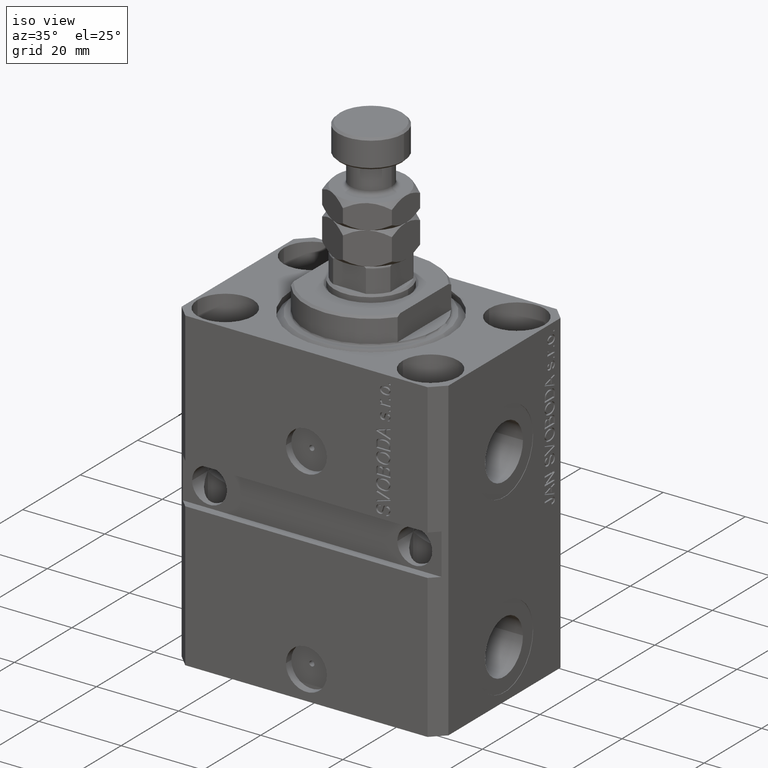
[diagram: clean part render]
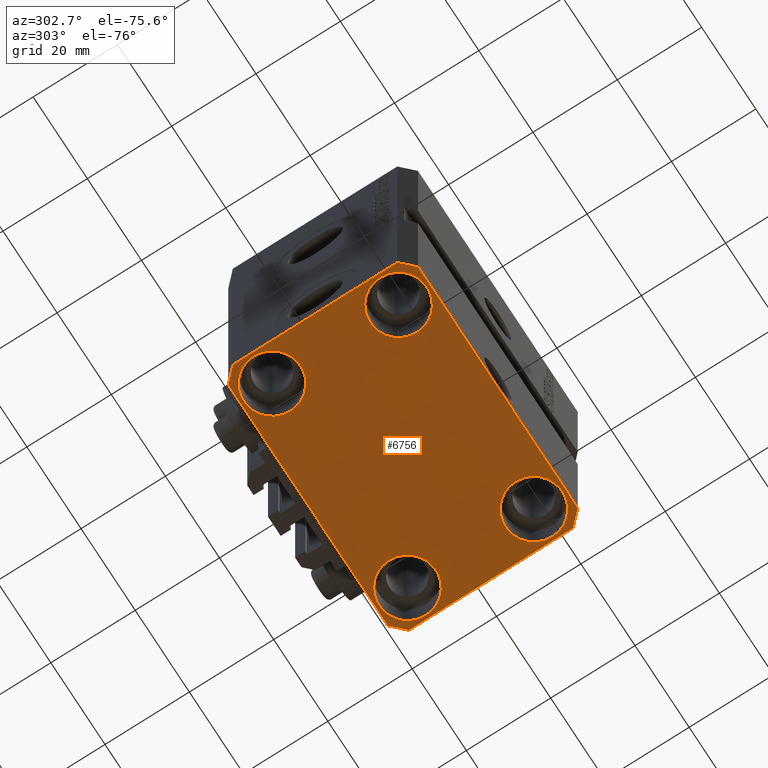
[diagram: tour spotlight — one face highlighted and labeled with its STEP entity id]
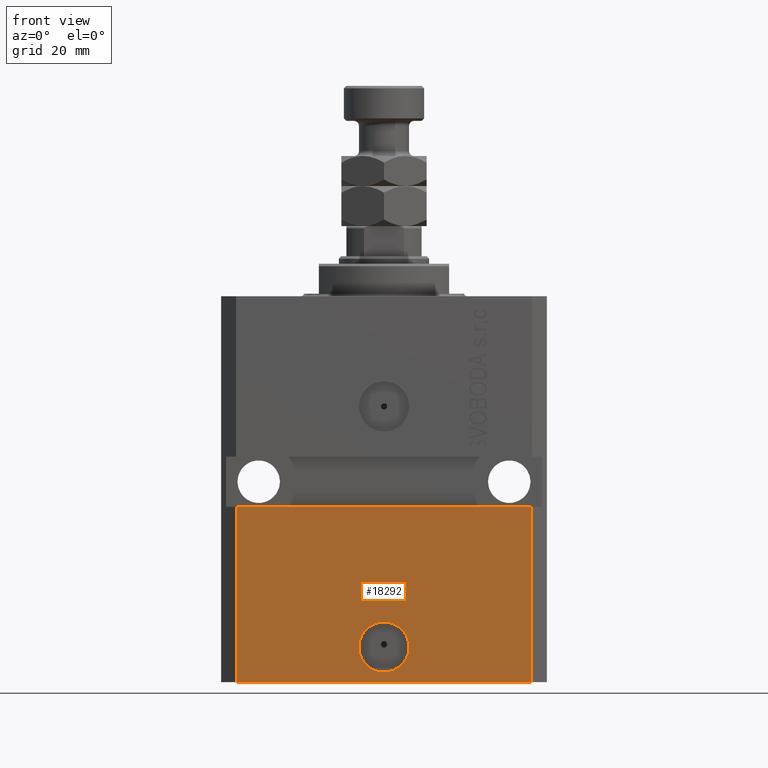
[diagram: tour spotlight — one face highlighted and labeled with its STEP entity id]
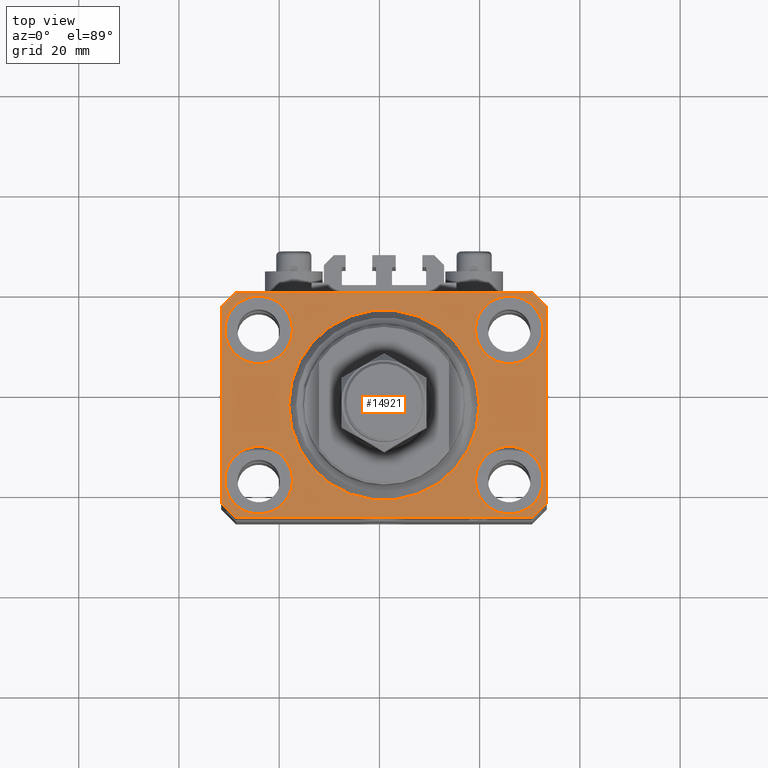
[diagram: tour spotlight — one face highlighted and labeled with its STEP entity id]
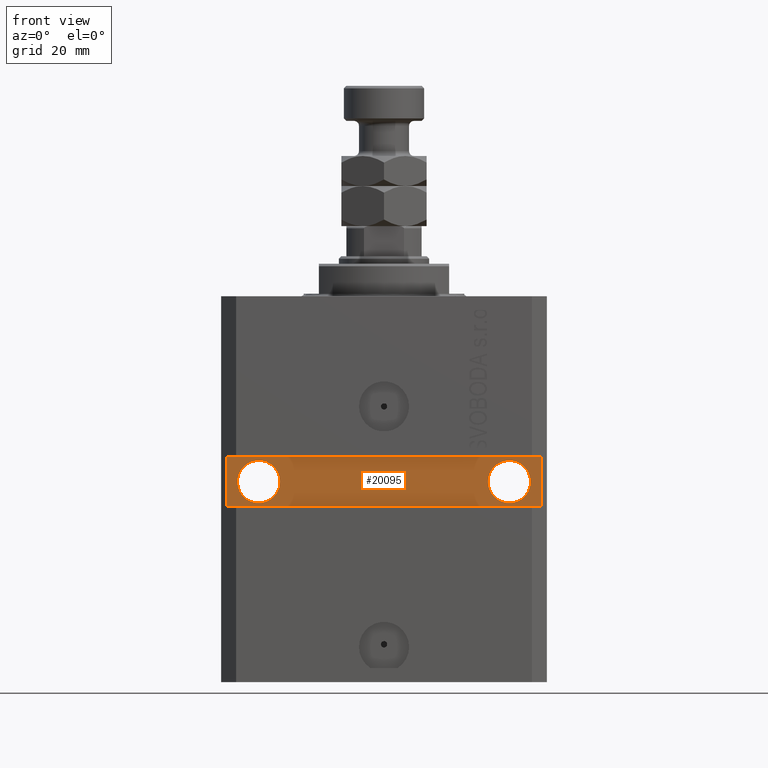
[diagram: tour spotlight — one face highlighted and labeled with its STEP entity id]
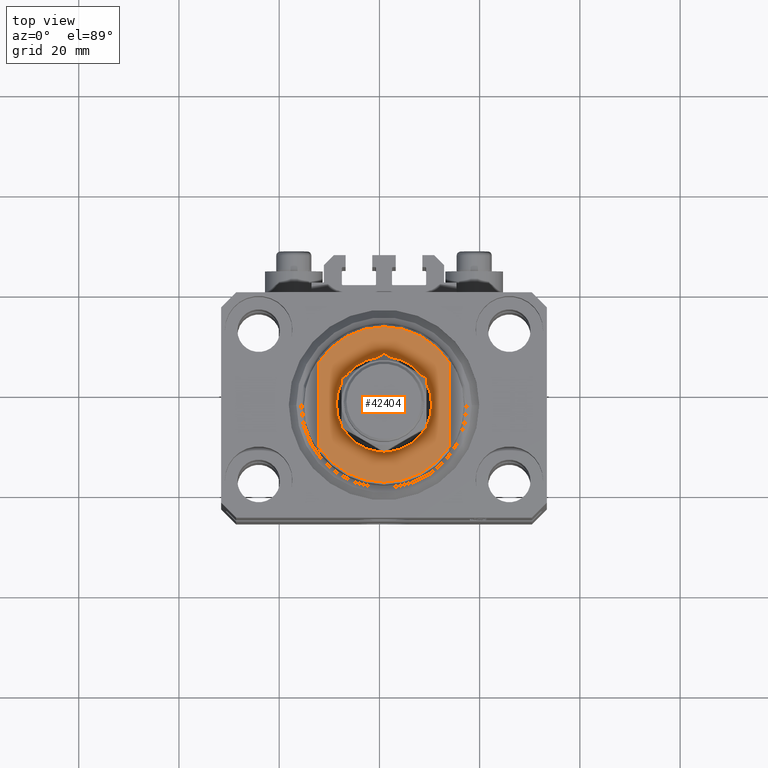
[diagram: tour spotlight — one face highlighted and labeled with its STEP entity id]
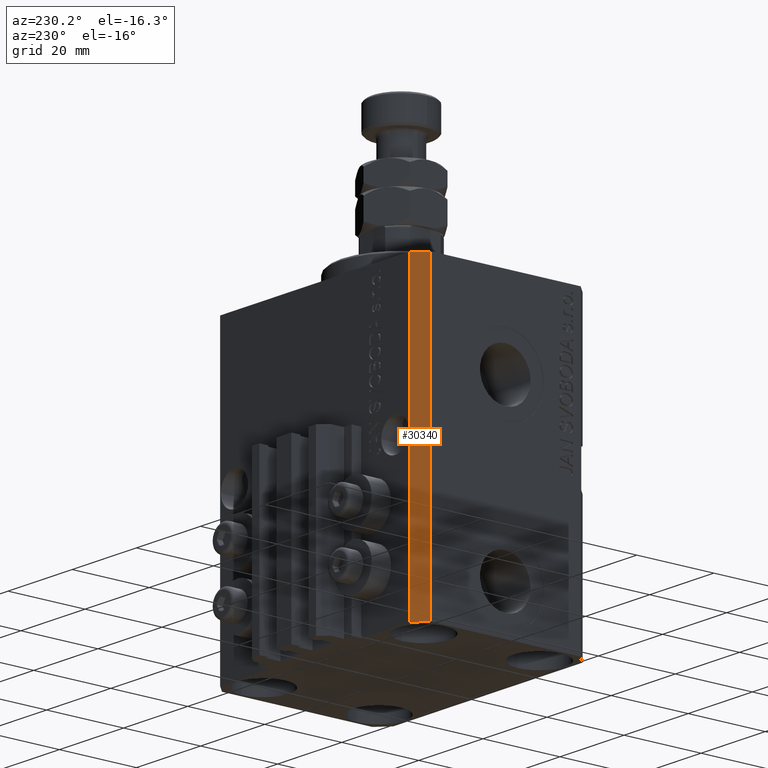
[diagram: tour spotlight — one face highlighted and labeled with its STEP entity id]
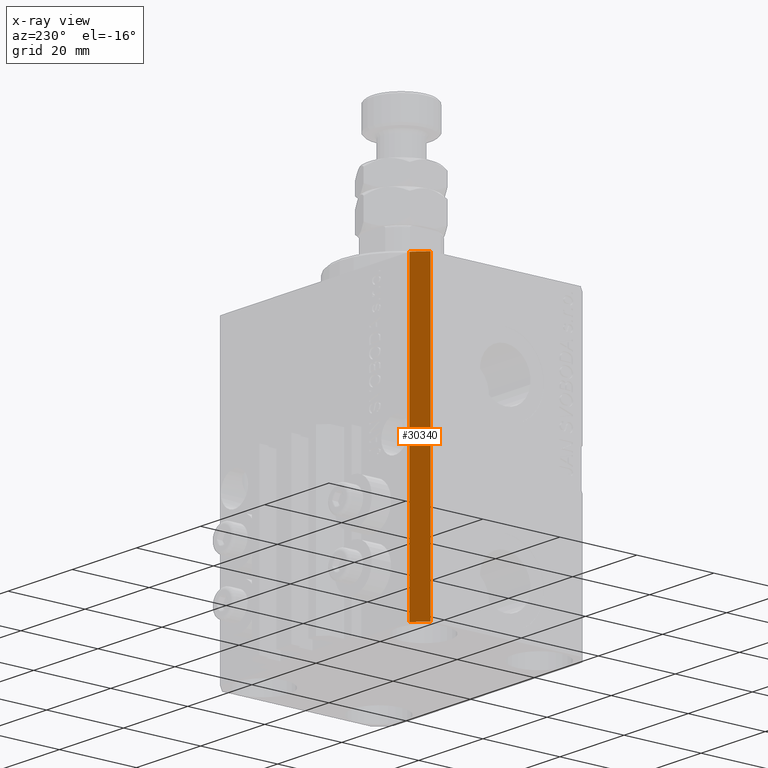
[diagram: x-ray of the same camera — body ghosted, this tour face saturated]
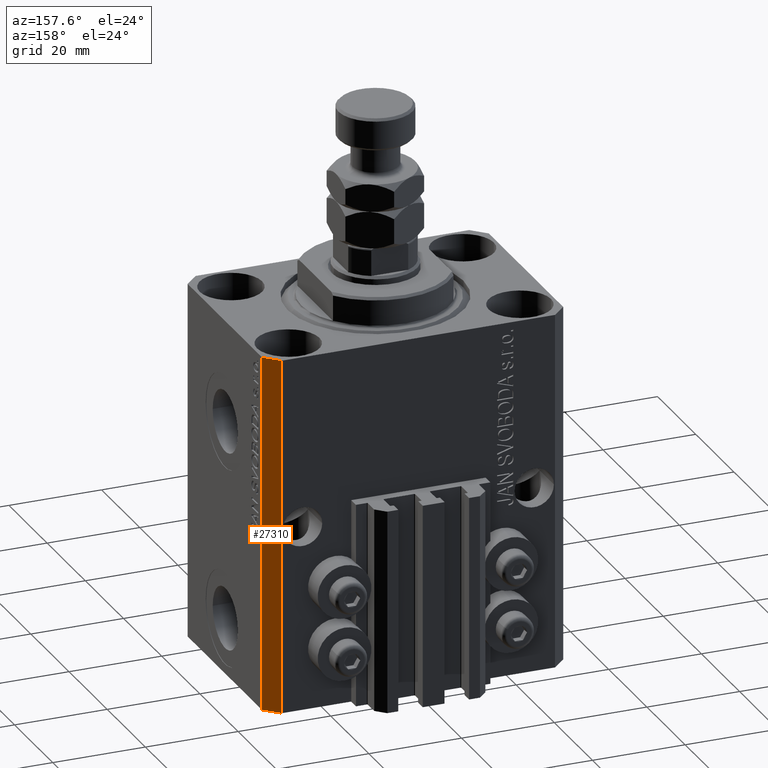
[diagram: tour spotlight — one face highlighted and labeled with its STEP entity id]
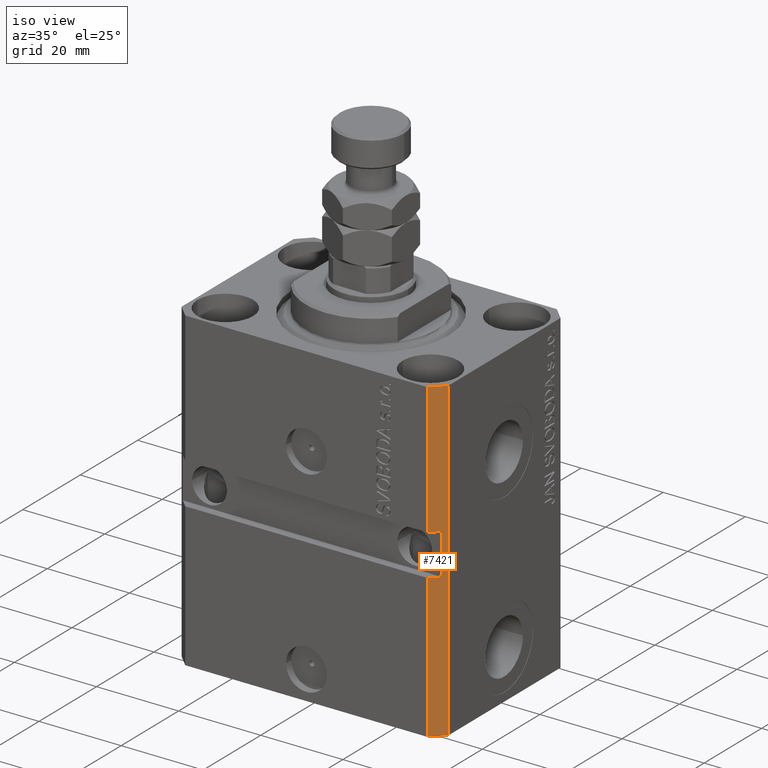
[diagram: tour spotlight — one face highlighted and labeled with its STEP entity id]
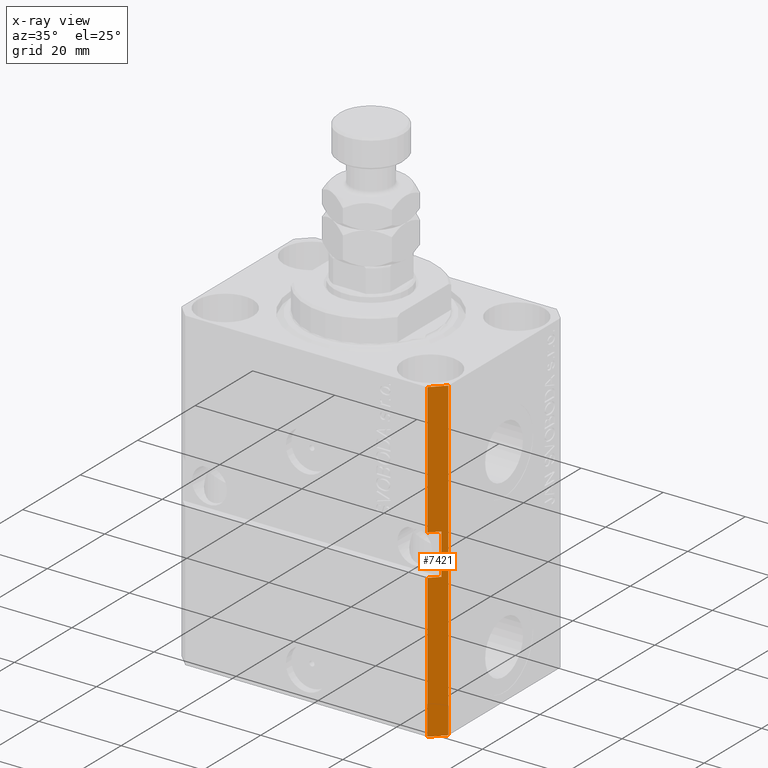
[diagram: x-ray of the same camera — body ghosted, this tour face saturated]
A machine part: a face-by-face anatomy tour. The part has 1135 B-rep faces; the first image is the clean iso view, then the 8 largest visible faces are spotlighted one at a time (largest first), each with its STEP entity span.

Face 1 — auxiliary view, entity #6756. In plain terms, the highlighted planar face has unit normal (0, 0, 1).
Definition (entity closure, byte-faithful):
#782 = VERTEX_POINT ( 'NONE', #4209 ) ;
#1633 = VERTEX_POINT ( 'NONE', #1945 ) ;
#1660 = DIRECTION ( 'NONE',  ( -0.000000000000000000, -0.000000000000000000, 1.000000000000000000 ) ) ;
#1945 = CARTESIAN_POINT ( 'NONE',  ( 18.25000000004154543, 15.00000000000000888, -77.00000000000000000 ) ) ;
#2403 = VERTEX_POINT ( 'NONE', #12836 ) ;
#2987 = VERTEX_POINT ( 'NONE', #44020 ) ;
#3161 = EDGE_CURVE ( 'NONE', #25641, #782, #31664, .T. ) ;
#3169 = CIRCLE ( 'NONE', #15958, 6.749999999977465137 ) ;
#3378 = AXIS2_PLACEMENT_3D ( 'NONE', #24434, #20932, #36410 ) ;
#3767 = ORIENTED_EDGE ( 'NONE', *, *, #18434, .F. ) ;
#4209 = CARTESIAN_POINT ( 'NONE',  ( -18.24999999995845812, -15.00000000000000000, -77.00000000000000000 ) ) ;
#4377 = DIRECTION ( 'NONE',  ( 0.000000000000000000, 0.000000000000000000, 1.000000000000000000 ) ) ;
#5213 = DIRECTION ( 'NONE',  ( 1.334402673828349134E-14, 1.000000000000000000, 0.000000000000000000 ) ) ;
#5358 = CARTESIAN_POINT ( 'NONE',  ( -32.49999999999650413, -19.49999999999949907, -77.00000000000000000 ) ) ;
#5516 = CARTESIAN_POINT ( 'NONE',  ( 31.74999999997746869, -15.00000000000000000, -77.00000000000000000 ) ) ;
#5694 = LINE ( 'NONE', #20938, #22789 ) ;
#5909 = ORIENTED_EDGE ( 'NONE', *, *, #33013, .T. ) ;
#6388 = FACE_BOUND ( 'NONE', #19199, .T. ) ;
#6655 = CARTESIAN_POINT ( 'NONE',  ( -32.49999999999650413, 19.49999999999949907, -77.00000000000000000 ) ) ;
#6756 = ADVANCED_FACE ( 'NONE', ( #6388, #48318, #14136, #29366, #44591 ), #31106, .F. ) ;
#7419 = DIRECTION ( 'NONE',  ( -0.000000000000000000, -0.000000000000000000, 1.000000000000000000 ) ) ;
#7636 = LINE ( 'NONE', #34867, #47443 ) ;
#8428 = DIRECTION ( 'NONE',  ( 1.000000000000000000, 0.000000000000000000, 0.000000000000000000 ) ) ;
#8584 = CARTESIAN_POINT ( 'NONE',  ( -18.24999999997747224, 15.00000000000000000, -77.00000000000000000 ) ) ;
#9101 = DIRECTION ( 'NONE',  ( 0.7071067811865474617, -0.7071067811865474617, 0.000000000000000000 ) ) ;
#9211 = DIRECTION ( 'NONE',  ( 1.000000000000000000, 0.000000000000000000, 0.000000000000000000 ) ) ;
#9258 = CARTESIAN_POINT ( 'NONE',  ( -25.00000000000000355, 15.00000000000000000, -77.00000000000000000 ) ) ;
#9450 = DIRECTION ( 'NONE',  ( -0.000000000000000000, -0.000000000000000000, 1.000000000000000000 ) ) ;
#9781 = VERTEX_POINT ( 'NONE', #5516 ) ;
#9819 = EDGE_CURVE ( 'NONE', #2987, #10154, #21064, .T. ) ;
#10154 = VERTEX_POINT ( 'NONE', #8584 ) ;
#10739 = EDGE_CURVE ( 'NONE', #17704, #37982, #45166, .T. ) ;
#10845 = VECTOR ( 'NONE', #14588, 1000.000000000000000 ) ;
#11022 = AXIS2_PLACEMENT_3D ( 'NONE', #18641, #29393, #22151 ) ;
#11165 = VECTOR ( 'NONE', #9101, 1000.000000000000114 ) ;
#12282 = AXIS2_PLACEMENT_3D ( 'NONE', #32674, #9450, #9211 ) ;
#12644 = CIRCLE ( 'NONE', #11022, 6.750000000041541881 ) ;
#12804 = CARTESIAN_POINT ( 'NONE',  ( 18.25000000002253842, -15.00000000000000000, -77.00000000000000000 ) ) ;
#12836 = CARTESIAN_POINT ( 'NONE',  ( -32.49999999999650413, 19.49999999999949907, -77.00000000000000000 ) ) ;
#12911 = DIRECTION ( 'NONE',  ( 1.000000000000000000, 0.000000000000000000, 0.000000000000000000 ) ) ;
#13705 = AXIS2_PLACEMENT_3D ( 'NONE', #16673, #20670, #8428 ) ;
#13842 = VERTEX_POINT ( 'NONE', #49214 ) ;
#13908 = AXIS2_PLACEMENT_3D ( 'NONE', #41644, #7419, #22672 ) ;
#14136 = FACE_BOUND ( 'NONE', #26666, .T. ) ;
#14472 = LINE ( 'NONE', #19211, #34147 ) ;
#14588 = DIRECTION ( 'NONE',  ( -1.000000000000000000, -2.352167425053553784E-16, 0.000000000000000000 ) ) ;
#15116 = CARTESIAN_POINT ( 'NONE',  ( 29.49999999999707967, 22.49999999999951328, -77.00000000000000000 ) ) ;
#15560 = CARTESIAN_POINT ( 'NONE',  ( -31.75000000004154899, -15.00000000000000000, -77.00000000000000000 ) ) ;
#15889 = ORIENTED_EDGE ( 'NONE', *, *, #34435, .F. ) ;
#15958 = AXIS2_PLACEMENT_3D ( 'NONE', #20162, #19920, #38386 ) ;
#16101 = EDGE_CURVE ( 'NONE', #2403, #17832, #40874, .T. ) ;
#16135 = EDGE_CURVE ( 'NONE', #31631, #17704, #7636, .T. ) ;
#16673 = CARTESIAN_POINT ( 'NONE',  ( 24.99999999999999645, 15.00000000000000888, -77.00000000000000000 ) ) ;
#16743 = ORIENTED_EDGE ( 'NONE', *, *, #9819, .T. ) ;
#17240 = DIRECTION ( 'NONE',  ( 1.000000000000000000, 0.000000000000000000, 0.000000000000000000 ) ) ;
#17704 = VERTEX_POINT ( 'NONE', #29207 ) ;
#17832 = VERTEX_POINT ( 'NONE', #31936 ) ;
#17892 = EDGE_CURVE ( 'NONE', #37982, #37286, #5694, .T. ) ;
#18208 = EDGE_LOOP ( 'NONE', ( #3767, #46502, #37080, #43426, #22806, #15889, #30543, #27239 ) ) ;
#18232 = DIRECTION ( 'NONE',  ( 0.7071067811865483499, 0.7071067811865466846, 0.000000000000000000 ) ) ;
#18434 = EDGE_CURVE ( 'NONE', #35285, #13842, #26819, .T. ) ;
#18514 = CIRCLE ( 'NONE', #13705, 6.749999999958452790 ) ;
#18641 = CARTESIAN_POINT ( 'NONE',  ( -25.00000000000000355, -15.00000000000000000, -77.00000000000000000 ) ) ;
#19199 = EDGE_LOOP ( 'NONE', ( #24613, #43872 ) ) ;
#19211 = CARTESIAN_POINT ( 'NONE',  ( 32.49999999999702993, 19.49999999999945999, -77.00000000000000000 ) ) ;
#19920 = DIRECTION ( 'NONE',  ( -0.000000000000000000, -0.000000000000000000, 1.000000000000000000 ) ) ;
#20162 = CARTESIAN_POINT ( 'NONE',  ( 25.00000000000000355, -15.00000000000000000, -77.00000000000000000 ) ) ;
#20670 = DIRECTION ( 'NONE',  ( -0.000000000000000000, -0.000000000000000000, 1.000000000000000000 ) ) ;
#20932 = DIRECTION ( 'NONE',  ( -0.000000000000000000, -0.000000000000000000, 1.000000000000000000 ) ) ;
#20938 = CARTESIAN_POINT ( 'NONE',  ( 32.49999999999651124, -19.49999999999949196, -77.00000000000000000 ) ) ;
#21064 = CIRCLE ( 'NONE', #39388, 6.750000000022533087 ) ;
#21908 = DIRECTION ( 'NONE',  ( 0.000000000000000000, -1.000000000000000000, 0.000000000000000000 ) ) ;
#22151 = DIRECTION ( 'NONE',  ( 1.000000000000000000, 0.000000000000000000, 0.000000000000000000 ) ) ;
#22239 = CARTESIAN_POINT ( 'NONE',  ( -29.49999999999650413, -22.49999999999949907, -77.00000000000000000 ) ) ;
#22458 = DIRECTION ( 'NONE',  ( -0.7071067811865352493, 0.7071067811865597852, 0.000000000000000000 ) ) ;
#22672 = DIRECTION ( 'NONE',  ( 1.000000000000000000, 0.000000000000000000, 0.000000000000000000 ) ) ;
#22789 = VECTOR ( 'NONE', #5213, 1000.000000000000000 ) ;
#22806 = ORIENTED_EDGE ( 'NONE', *, *, #16135, .F. ) ;
#23299 = EDGE_CURVE ( 'NONE', #37286, #35285, #14472, .T. ) ;
#24134 = ORIENTED_EDGE ( 'NONE', *, *, #33938, .T. ) ;
#24434 = CARTESIAN_POINT ( 'NONE',  ( 24.99999999999999645, 15.00000000000000888, -77.00000000000000000 ) ) ;
#24613 = ORIENTED_EDGE ( 'NONE', *, *, #3161, .T. ) ;
#24660 = ORIENTED_EDGE ( 'NONE', *, *, #45498, .T. ) ;
#24922 = CIRCLE ( 'NONE', #3378, 6.749999999958452790 ) ;
#25641 = VERTEX_POINT ( 'NONE', #15560 ) ;
#26666 = EDGE_LOOP ( 'NONE', ( #45337, #5909 ) ) ;
#26819 = LINE ( 'NONE', #49020, #10845 ) ;
#26873 = DIRECTION ( 'NONE',  ( 1.000000000000000000, 1.176083712526788232E-16, 0.000000000000000000 ) ) ;
#27088 = EDGE_CURVE ( 'NONE', #782, #25641, #12644, .T. ) ;
#27239 = ORIENTED_EDGE ( 'NONE', *, *, #31611, .F. ) ;
#27561 = VERTEX_POINT ( 'NONE', #48155 ) ;
#27668 = ORIENTED_EDGE ( 'NONE', *, *, #47472, .T. ) ;
#28120 = AXIS2_PLACEMENT_3D ( 'NONE', #38336, #4377, #30345 ) ;
#28238 = DIRECTION ( 'NONE',  ( -0.000000000000000000, -0.000000000000000000, 1.000000000000000000 ) ) ;
#28281 = CIRCLE ( 'NONE', #13908, 6.749999999977465137 ) ;
#29207 = CARTESIAN_POINT ( 'NONE',  ( 29.49999999999650413, -22.49999999999949196, -77.00000000000000000 ) ) ;
#29366 = FACE_BOUND ( 'NONE', #36412, .T. ) ;
#29393 = DIRECTION ( 'NONE',  ( -0.000000000000000000, -0.000000000000000000, 1.000000000000000000 ) ) ;
#30345 = DIRECTION ( 'NONE',  ( 1.000000000000000000, 0.000000000000000000, -0.000000000000000000 ) ) ;
#30543 = ORIENTED_EDGE ( 'NONE', *, *, #16101, .F. ) ;
#31106 = PLANE ( 'NONE',  #28120 ) ;
#31611 = EDGE_CURVE ( 'NONE', #13842, #2403, #48921, .T. ) ;
#31631 = VERTEX_POINT ( 'NONE', #22239 ) ;
#31664 = CIRCLE ( 'NONE', #46893, 6.750000000041541881 ) ;
#31936 = CARTESIAN_POINT ( 'NONE',  ( -32.49999999999650413, -19.49999999999949907, -77.00000000000000000 ) ) ;
#32377 = CARTESIAN_POINT ( 'NONE',  ( -25.00000000000000355, -15.00000000000000000, -77.00000000000000000 ) ) ;
#32674 = CARTESIAN_POINT ( 'NONE',  ( -25.00000000000000355, 15.00000000000000000, -77.00000000000000000 ) ) ;
#33013 = EDGE_CURVE ( 'NONE', #27561, #1633, #18514, .T. ) ;
#33313 = CARTESIAN_POINT ( 'NONE',  ( 32.49999999999702993, 19.49999999999945999, -77.00000000000000000 ) ) ;
#33783 = CIRCLE ( 'NONE', #12282, 6.750000000022533087 ) ;
#33938 = EDGE_CURVE ( 'NONE', #45375, #9781, #3169, .T. ) ;
#34147 = VECTOR ( 'NONE', #22458, 1000.000000000000000 ) ;
#34435 = EDGE_CURVE ( 'NONE', #17832, #31631, #47527, .T. ) ;
#34867 = CARTESIAN_POINT ( 'NONE',  ( -29.49999999999650413, -22.49999999999949907, -77.00000000000000000 ) ) ;
#35285 = VERTEX_POINT ( 'NONE', #15116 ) ;
#36410 = DIRECTION ( 'NONE',  ( 1.000000000000000000, 0.000000000000000000, 0.000000000000000000 ) ) ;
#36412 = EDGE_LOOP ( 'NONE', ( #16743, #24660 ) ) ;
#37080 = ORIENTED_EDGE ( 'NONE', *, *, #17892, .F. ) ;
#37286 = VERTEX_POINT ( 'NONE', #33313 ) ;
#37709 = CARTESIAN_POINT ( 'NONE',  ( -29.49999999999650413, 22.49999999999949907, -77.00000000000000000 ) ) ;
#37982 = VERTEX_POINT ( 'NONE', #48282 ) ;
#38336 = CARTESIAN_POINT ( 'NONE',  ( 0.000000000000000000, 0.000000000000000000, -77.00000000000000000 ) ) ;
#38386 = DIRECTION ( 'NONE',  ( 1.000000000000000000, 0.000000000000000000, 0.000000000000000000 ) ) ;
#39388 = AXIS2_PLACEMENT_3D ( 'NONE', #9258, #28238, #17240 ) ;
#39490 = VECTOR ( 'NONE', #21908, 1000.000000000000000 ) ;
#39700 = EDGE_CURVE ( 'NONE', #1633, #27561, #24922, .T. ) ;
#40874 = LINE ( 'NONE', #6655, #39490 ) ;
#41449 = DIRECTION ( 'NONE',  ( -0.7071067811865474617, -0.7071067811865474617, 0.000000000000000000 ) ) ;
#41644 = CARTESIAN_POINT ( 'NONE',  ( 25.00000000000000355, -15.00000000000000000, -77.00000000000000000 ) ) ;
#43078 = VECTOR ( 'NONE', #41449, 1000.000000000000114 ) ;
#43373 = VECTOR ( 'NONE', #18232, 1000.000000000000000 ) ;
#43426 = ORIENTED_EDGE ( 'NONE', *, *, #10739, .F. ) ;
#43872 = ORIENTED_EDGE ( 'NONE', *, *, #27088, .T. ) ;
#44020 = CARTESIAN_POINT ( 'NONE',  ( -31.75000000002253842, 15.00000000000000000, -77.00000000000000000 ) ) ;
#44591 = FACE_OUTER_BOUND ( 'NONE', #18208, .T. ) ;
#45166 = LINE ( 'NONE', #45410, #43373 ) ;
#45337 = ORIENTED_EDGE ( 'NONE', *, *, #39700, .T. ) ;
#45375 = VERTEX_POINT ( 'NONE', #12804 ) ;
#45410 = CARTESIAN_POINT ( 'NONE',  ( 29.49999999999650413, -22.49999999999949196, -77.00000000000000000 ) ) ;
#45498 = EDGE_CURVE ( 'NONE', #10154, #2987, #33783, .T. ) ;
#46188 = EDGE_LOOP ( 'NONE', ( #24134, #27668 ) ) ;
#46502 = ORIENTED_EDGE ( 'NONE', *, *, #23299, .F. ) ;
#46893 = AXIS2_PLACEMENT_3D ( 'NONE', #32377, #1660, #12911 ) ;
#47443 = VECTOR ( 'NONE', #26873, 1000.000000000000000 ) ;
#47472 = EDGE_CURVE ( 'NONE', #9781, #45375, #28281, .T. ) ;
#47527 = LINE ( 'NONE', #5358, #11165 ) ;
#48155 = CARTESIAN_POINT ( 'NONE',  ( 31.74999999995845101, 15.00000000000000888, -77.00000000000000000 ) ) ;
#48282 = CARTESIAN_POINT ( 'NONE',  ( 32.49999999999651124, -19.49999999999949196, -77.00000000000000000 ) ) ;
#48318 = FACE_BOUND ( 'NONE', #46188, .T. ) ;
#48921 = LINE ( 'NONE', #37709, #43078 ) ;
#49020 = CARTESIAN_POINT ( 'NONE',  ( 29.49999999999707967, 22.49999999999951328, -77.00000000000000000 ) ) ;
#49214 = CARTESIAN_POINT ( 'NONE',  ( -29.49999999999650413, 22.49999999999949907, -77.00000000000000000 ) ) ;

Face 2 — front view, entity #18292. In plain terms, the highlighted planar face has unit normal (0, -1, 0).
Definition (entity closure, byte-faithful):
#1210 = DIRECTION ( 'NONE',  ( 0.000000000000000000, 0.000000000000000000, 1.000000000000000000 ) ) ;
#2280 = CARTESIAN_POINT ( 'NONE',  ( 5.000000000000007994, -22.49999999999949551, -69.99999999999998579 ) ) ;
#5502 = CARTESIAN_POINT ( 'NONE',  ( 29.49999999999650413, -22.49999999999949196, -77.00000000000000000 ) ) ;
#6389 = ORIENTED_EDGE ( 'NONE', *, *, #13064, .F. ) ;
#7109 = CARTESIAN_POINT ( 'NONE',  ( 2.646188353185214061E-15, -22.49999999999949551, -69.99999999999998579 ) ) ;
#7503 = AXIS2_PLACEMENT_3D ( 'NONE', #7109, #48312, #25606 ) ;
#7636 = LINE ( 'NONE', #34867, #47443 ) ;
#7985 = CARTESIAN_POINT ( 'NONE',  ( 2.646188353185214061E-15, -22.49999999999949551, -69.99999999999998579 ) ) ;
#8522 = EDGE_CURVE ( 'NONE', #17704, #22077, #24483, .T. ) ;
#10357 = PLANE ( 'NONE',  #14054 ) ;
#10749 = DIRECTION ( 'NONE',  ( 1.176083712526788232E-16, -1.000000000000000000, 0.000000000000000000 ) ) ;
#13064 = EDGE_CURVE ( 'NONE', #31631, #23734, #20698, .T. ) ;
#14054 = AXIS2_PLACEMENT_3D ( 'NONE', #47807, #17368, #36838 ) ;
#14575 = VERTEX_POINT ( 'NONE', #2280 ) ;
#15578 = ORIENTED_EDGE ( 'NONE', *, *, #37401, .F. ) ;
#16135 = EDGE_CURVE ( 'NONE', #31631, #17704, #7636, .T. ) ;
#16226 = DIRECTION ( 'NONE',  ( 1.000000000000000000, 0.000000000000000000, 0.000000000000000000 ) ) ;
#16558 = EDGE_LOOP ( 'NONE', ( #15578, #6389, #36486, #24667 ) ) ;
#16586 = CARTESIAN_POINT ( 'NONE',  ( -29.49999999999650413, -22.49999999999949907, -41.99999999999999289 ) ) ;
#17368 = DIRECTION ( 'NONE',  ( 1.176083712526788232E-16, -1.000000000000000000, 0.000000000000000000 ) ) ;
#17610 = FACE_BOUND ( 'NONE', #32764, .T. ) ;
#17704 = VERTEX_POINT ( 'NONE', #29207 ) ;
#18292 = ADVANCED_FACE ( 'NONE', ( #17610, #21129 ), #10357, .T. ) ;
#20698 = LINE ( 'NONE', #31200, #26603 ) ;
#21129 = FACE_OUTER_BOUND ( 'NONE', #16558, .T. ) ;
#21942 = EDGE_CURVE ( 'NONE', #47856, #14575, #41249, .T. ) ;
#22077 = VERTEX_POINT ( 'NONE', #43676 ) ;
#22239 = CARTESIAN_POINT ( 'NONE',  ( -29.49999999999650413, -22.49999999999949907, -77.00000000000000000 ) ) ;
#22909 = ORIENTED_EDGE ( 'NONE', *, *, #21942, .F. ) ;
#23734 = VERTEX_POINT ( 'NONE', #16586 ) ;
#24483 = LINE ( 'NONE', #5502, #34519 ) ;
#24667 = ORIENTED_EDGE ( 'NONE', *, *, #8522, .T. ) ;
#25606 = DIRECTION ( 'NONE',  ( 1.000000000000000000, 0.000000000000000000, 0.000000000000000000 ) ) ;
#26603 = VECTOR ( 'NONE', #1210, 1000.000000000000000 ) ;
#26873 = DIRECTION ( 'NONE',  ( 1.000000000000000000, 1.176083712526788232E-16, 0.000000000000000000 ) ) ;
#27487 = DIRECTION ( 'NONE',  ( 0.000000000000000000, 0.000000000000000000, 1.000000000000000000 ) ) ;
#29207 = CARTESIAN_POINT ( 'NONE',  ( 29.49999999999650413, -22.49999999999949196, -77.00000000000000000 ) ) ;
#30892 = AXIS2_PLACEMENT_3D ( 'NONE', #7985, #10749, #16226 ) ;
#31062 = CARTESIAN_POINT ( 'NONE',  ( -32.49999999999650413, -22.49999999999949907, -41.99999999999999289 ) ) ;
#31200 = CARTESIAN_POINT ( 'NONE',  ( -29.49999999999650413, -22.49999999999949907, -77.00000000000000000 ) ) ;
#31604 = CARTESIAN_POINT ( 'NONE',  ( -5.000000000000002665, -22.49999999999949551, -69.99999999999998579 ) ) ;
#31631 = VERTEX_POINT ( 'NONE', #22239 ) ;
#32764 = EDGE_LOOP ( 'NONE', ( #49045, #22909 ) ) ;
#34519 = VECTOR ( 'NONE', #27487, 1000.000000000000000 ) ;
#34539 = LINE ( 'NONE', #31062, #40012 ) ;
#34867 = CARTESIAN_POINT ( 'NONE',  ( -29.49999999999650413, -22.49999999999949907, -77.00000000000000000 ) ) ;
#35042 = DIRECTION ( 'NONE',  ( 1.000000000000000000, 1.067522139062765303E-16, 1.067522139062765303E-16 ) ) ;
#36486 = ORIENTED_EDGE ( 'NONE', *, *, #16135, .T. ) ;
#36838 = DIRECTION ( 'NONE',  ( 1.000000000000000000, 1.176083712526788232E-16, 0.000000000000000000 ) ) ;
#37401 = EDGE_CURVE ( 'NONE', #23734, #22077, #34539, .T. ) ;
#37860 = CIRCLE ( 'NONE', #7503, 5.000000000000005329 ) ;
#40012 = VECTOR ( 'NONE', #35042, 1000.000000000000000 ) ;
#41249 = CIRCLE ( 'NONE', #30892, 5.000000000000005329 ) ;
#43676 = CARTESIAN_POINT ( 'NONE',  ( 29.49999999999650058, -22.49999999999949196, -41.99999999999998579 ) ) ;
#46900 = EDGE_CURVE ( 'NONE', #14575, #47856, #37860, .T. ) ;
#47443 = VECTOR ( 'NONE', #26873, 1000.000000000000000 ) ;
#47807 = CARTESIAN_POINT ( 'NONE',  ( -29.49999999999650413, -22.49999999999949907, -77.00000000000000000 ) ) ;
#47856 = VERTEX_POINT ( 'NONE', #31604 ) ;
#48312 = DIRECTION ( 'NONE',  ( 1.176083712526788232E-16, -1.000000000000000000, 0.000000000000000000 ) ) ;
#49045 = ORIENTED_EDGE ( 'NONE', *, *, #46900, .F. ) ;

Face 3 — top view, entity #14921. In plain terms, the highlighted planar face has unit normal (0, 0, 1).
Definition (entity closure, byte-faithful):
#140 = CIRCLE ( 'NONE', #48774, 6.750000000041541881 ) ;
#345 = EDGE_CURVE ( 'NONE', #25078, #10313, #42300, .T. ) ;
#569 = CIRCLE ( 'NONE', #25297, 6.749999999958452790 ) ;
#781 = CARTESIAN_POINT ( 'NONE',  ( 32.49999999999651124, -19.49999999999949196, 0.000000000000000000 ) ) ;
#1385 = ORIENTED_EDGE ( 'NONE', *, *, #4408, .F. ) ;
#1657 = AXIS2_PLACEMENT_3D ( 'NONE', #30915, #4933, #12183 ) ;
#1766 = CARTESIAN_POINT ( 'NONE',  ( 32.49999999999702993, 19.49999999999945999, 0.000000000000000000 ) ) ;
#1930 = EDGE_CURVE ( 'NONE', #3871, #11241, #569, .T. ) ;
#2945 = EDGE_LOOP ( 'NONE', ( #33432, #45388, #7884, #25624, #35564, #31860, #36355, #15139 ) ) ;
#3720 = EDGE_LOOP ( 'NONE', ( #39151, #37142 ) ) ;
#3761 = AXIS2_PLACEMENT_3D ( 'NONE', #31537, #43256, #24289 ) ;
#3815 = AXIS2_PLACEMENT_3D ( 'NONE', #38216, #15234, #15742 ) ;
#3871 = VERTEX_POINT ( 'NONE', #15986 ) ;
#4408 = EDGE_CURVE ( 'NONE', #32642, #37664, #6156, .T. ) ;
#4825 = CARTESIAN_POINT ( 'NONE',  ( -32.49999999999650413, -19.49999999999949907, 0.000000000000000000 ) ) ;
#4933 = DIRECTION ( 'NONE',  ( 0.000000000000000000, 0.000000000000000000, 1.000000000000000000 ) ) ;
#5280 = LINE ( 'NONE', #1766, #29656 ) ;
#5421 = DIRECTION ( 'NONE',  ( 1.000000000000000000, 1.176083712526788232E-16, 0.000000000000000000 ) ) ;
#5665 = VERTEX_POINT ( 'NONE', #20057 ) ;
#5961 = LINE ( 'NONE', #28683, #37475 ) ;
#6064 = VECTOR ( 'NONE', #40586, 1000.000000000000114 ) ;
#6156 = CIRCLE ( 'NONE', #3761, 6.750000000022533087 ) ;
#6221 = FACE_BOUND ( 'NONE', #40672, .T. ) ;
#6603 = CARTESIAN_POINT ( 'NONE',  ( -29.49999999999650413, 22.49999999999949907, 0.000000000000000000 ) ) ;
#6635 = EDGE_CURVE ( 'NONE', #10313, #41003, #42464, .T. ) ;
#6843 = LINE ( 'NONE', #781, #32953 ) ;
#6998 = VERTEX_POINT ( 'NONE', #33297 ) ;
#7358 = ORIENTED_EDGE ( 'NONE', *, *, #44156, .F. ) ;
#7552 = AXIS2_PLACEMENT_3D ( 'NONE', #22154, #31131, #42859 ) ;
#7779 = CARTESIAN_POINT ( 'NONE',  ( 19.00000000000000000, 0.000000000000000000, 0.000000000000000000 ) ) ;
#7884 = ORIENTED_EDGE ( 'NONE', *, *, #18000, .T. ) ;
#8514 = VECTOR ( 'NONE', #31309, 1000.000000000000114 ) ;
#9344 = DIRECTION ( 'NONE',  ( 0.000000000000000000, 0.000000000000000000, 1.000000000000000000 ) ) ;
#9647 = CARTESIAN_POINT ( 'NONE',  ( -29.49999999999650413, -22.49999999999949907, 0.000000000000000000 ) ) ;
#10313 = VERTEX_POINT ( 'NONE', #28304 ) ;
#10380 = EDGE_CURVE ( 'NONE', #28900, #30999, #12297, .T. ) ;
#10631 = CARTESIAN_POINT ( 'NONE',  ( 24.99999999999999645, 15.00000000000000888, 0.000000000000000000 ) ) ;
#11241 = VERTEX_POINT ( 'NONE', #13329 ) ;
#11685 = CARTESIAN_POINT ( 'NONE',  ( 31.74999999997746869, -15.00000000000000000, 0.000000000000000000 ) ) ;
#11996 = AXIS2_PLACEMENT_3D ( 'NONE', #18984, #49407, #30462 ) ;
#12035 = DIRECTION ( 'NONE',  ( 1.334402673828349134E-14, 1.000000000000000000, 0.000000000000000000 ) ) ;
#12183 = DIRECTION ( 'NONE',  ( 1.000000000000000000, 0.000000000000000000, 0.000000000000000000 ) ) ;
#12297 = CIRCLE ( 'NONE', #40196, 6.749999999977465137 ) ;
#12466 = EDGE_CURVE ( 'NONE', #35498, #6998, #6843, .T. ) ;
#13329 = CARTESIAN_POINT ( 'NONE',  ( 18.25000000004154543, 15.00000000000000888, 0.000000000000000000 ) ) ;
#13713 = VERTEX_POINT ( 'NONE', #19604 ) ;
#13718 = FACE_BOUND ( 'NONE', #37251, .T. ) ;
#13917 = AXIS2_PLACEMENT_3D ( 'NONE', #32944, #13965, #29191 ) ;
#13965 = DIRECTION ( 'NONE',  ( 0.000000000000000000, 0.000000000000000000, 1.000000000000000000 ) ) ;
#14694 = ORIENTED_EDGE ( 'NONE', *, *, #38285, .F. ) ;
#14921 = ADVANCED_FACE ( 'NONE', ( #16983, #32220, #13718, #6221, #36695, #17708 ), #39469, .T. ) ;
#15139 = ORIENTED_EDGE ( 'NONE', *, *, #41620, .T. ) ;
#15234 = DIRECTION ( 'NONE',  ( 0.000000000000000000, 0.000000000000000000, 1.000000000000000000 ) ) ;
#15653 = DIRECTION ( 'NONE',  ( 1.000000000000000000, 0.000000000000000000, 0.000000000000000000 ) ) ;
#15742 = DIRECTION ( 'NONE',  ( 1.000000000000000000, 0.000000000000000000, 0.000000000000000000 ) ) ;
#15986 = CARTESIAN_POINT ( 'NONE',  ( 31.74999999995845101, 15.00000000000000888, 0.000000000000000000 ) ) ;
#16108 = DIRECTION ( 'NONE',  ( 1.000000000000000000, 0.000000000000000000, 0.000000000000000000 ) ) ;
#16128 = EDGE_CURVE ( 'NONE', #30999, #28900, #45051, .T. ) ;
#16983 = FACE_BOUND ( 'NONE', #26175, .T. ) ;
#17708 = FACE_OUTER_BOUND ( 'NONE', #2945, .T. ) ;
#18000 = EDGE_CURVE ( 'NONE', #5665, #25078, #30635, .T. ) ;
#18278 = EDGE_CURVE ( 'NONE', #40737, #5665, #44322, .T. ) ;
#18427 = CARTESIAN_POINT ( 'NONE',  ( -32.49999999999650413, -19.49999999999949907, 0.000000000000000000 ) ) ;
#18491 = CARTESIAN_POINT ( 'NONE',  ( -18.24999999995846167, -15.00000000000000000, 0.000000000000000000 ) ) ;
#18984 = CARTESIAN_POINT ( 'NONE',  ( -25.00000000000000355, -15.00000000000000000, 0.000000000000000000 ) ) ;
#19081 = LINE ( 'NONE', #23586, #41564 ) ;
#19195 = CARTESIAN_POINT ( 'NONE',  ( -31.75000000002253842, 15.00000000000000000, 0.000000000000000000 ) ) ;
#19397 = CARTESIAN_POINT ( 'NONE',  ( 24.99999999999999645, 15.00000000000000888, 0.000000000000000000 ) ) ;
#19604 = CARTESIAN_POINT ( 'NONE',  ( -31.75000000004154899, -15.00000000000000000, 0.000000000000000000 ) ) ;
#19657 = CARTESIAN_POINT ( 'NONE',  ( -32.49999999999650413, 19.49999999999949907, 0.000000000000000000 ) ) ;
#20057 = CARTESIAN_POINT ( 'NONE',  ( -32.49999999999650413, 19.49999999999949907, 0.000000000000000000 ) ) ;
#20419 = VECTOR ( 'NONE', #37878, 1000.000000000000000 ) ;
#21015 = VECTOR ( 'NONE', #5421, 1000.000000000000000 ) ;
#22150 = CIRCLE ( 'NONE', #33296, 6.749999999958452790 ) ;
#22154 = CARTESIAN_POINT ( 'NONE',  ( 25.00000000000000355, -15.00000000000000000, 0.000000000000000000 ) ) ;
#22698 = VERTEX_POINT ( 'NONE', #18491 ) ;
#22826 = EDGE_CURVE ( 'NONE', #23998, #44079, #25352, .T. ) ;
#23360 = CARTESIAN_POINT ( 'NONE',  ( -19.00000000000000000, 2.326828918379970970E-15, 0.000000000000000000 ) ) ;
#23406 = CIRCLE ( 'NONE', #47296, 6.750000000022533087 ) ;
#23586 = CARTESIAN_POINT ( 'NONE',  ( 29.49999999999650413, -22.49999999999949196, 0.000000000000000000 ) ) ;
#23998 = VERTEX_POINT ( 'NONE', #7779 ) ;
#24289 = DIRECTION ( 'NONE',  ( 1.000000000000000000, 0.000000000000000000, 0.000000000000000000 ) ) ;
#24360 = ORIENTED_EDGE ( 'NONE', *, *, #16128, .F. ) ;
#25078 = VERTEX_POINT ( 'NONE', #18427 ) ;
#25297 = AXIS2_PLACEMENT_3D ( 'NONE', #19397, #42867, #15653 ) ;
#25352 = CIRCLE ( 'NONE', #3815, 19.00000000000000000 ) ;
#25367 = EDGE_CURVE ( 'NONE', #11241, #3871, #22150, .T. ) ;
#25624 = ORIENTED_EDGE ( 'NONE', *, *, #345, .T. ) ;
#25855 = DIRECTION ( 'NONE',  ( 0.000000000000000000, 0.000000000000000000, 1.000000000000000000 ) ) ;
#26175 = EDGE_LOOP ( 'NONE', ( #14694, #40418 ) ) ;
#27038 = CARTESIAN_POINT ( 'NONE',  ( -18.24999999997747224, 15.00000000000000000, 0.000000000000000000 ) ) ;
#27937 = CARTESIAN_POINT ( 'NONE',  ( 29.49999999999650413, -22.49999999999949196, 0.000000000000000000 ) ) ;
#28052 = DIRECTION ( 'NONE',  ( 0.000000000000000000, 0.000000000000000000, 1.000000000000000000 ) ) ;
#28304 = CARTESIAN_POINT ( 'NONE',  ( -29.49999999999650413, -22.49999999999949907, 0.000000000000000000 ) ) ;
#28683 = CARTESIAN_POINT ( 'NONE',  ( 29.49999999999707967, 22.49999999999951328, 0.000000000000000000 ) ) ;
#28900 = VERTEX_POINT ( 'NONE', #11685 ) ;
#29191 = DIRECTION ( 'NONE',  ( 1.000000000000000000, 0.000000000000000000, -0.000000000000000000 ) ) ;
#29656 = VECTOR ( 'NONE', #31764, 1000.000000000000000 ) ;
#30462 = DIRECTION ( 'NONE',  ( 1.000000000000000000, 0.000000000000000000, 0.000000000000000000 ) ) ;
#30635 = LINE ( 'NONE', #19657, #20419 ) ;
#30915 = CARTESIAN_POINT ( 'NONE',  ( 0.000000000000000000, 0.000000000000000000, 0.000000000000000000 ) ) ;
#30999 = VERTEX_POINT ( 'NONE', #36184 ) ;
#31131 = DIRECTION ( 'NONE',  ( 0.000000000000000000, 0.000000000000000000, 1.000000000000000000 ) ) ;
#31309 = DIRECTION ( 'NONE',  ( 0.7071067811865474617, -0.7071067811865474617, 0.000000000000000000 ) ) ;
#31537 = CARTESIAN_POINT ( 'NONE',  ( -25.00000000000000355, 15.00000000000000000, 0.000000000000000000 ) ) ;
#31762 = EDGE_CURVE ( 'NONE', #13713, #22698, #44686, .T. ) ;
#31764 = DIRECTION ( 'NONE',  ( -0.7071067811865352493, 0.7071067811865597852, 0.000000000000000000 ) ) ;
#31860 = ORIENTED_EDGE ( 'NONE', *, *, #40249, .T. ) ;
#32220 = FACE_BOUND ( 'NONE', #41368, .T. ) ;
#32642 = VERTEX_POINT ( 'NONE', #27038 ) ;
#32813 = CARTESIAN_POINT ( 'NONE',  ( 32.49999999999651124, -19.49999999999949196, 0.000000000000000000 ) ) ;
#32944 = CARTESIAN_POINT ( 'NONE',  ( 0.000000000000000000, 0.000000000000000000, 0.000000000000000000 ) ) ;
#32953 = VECTOR ( 'NONE', #12035, 1000.000000000000000 ) ;
#33296 = AXIS2_PLACEMENT_3D ( 'NONE', #10631, #25855, #37355 ) ;
#33297 = CARTESIAN_POINT ( 'NONE',  ( 32.49999999999702993, 19.49999999999945999, 0.000000000000000000 ) ) ;
#33432 = ORIENTED_EDGE ( 'NONE', *, *, #33751, .T. ) ;
#33751 = EDGE_CURVE ( 'NONE', #43583, #40737, #5961, .T. ) ;
#34810 = DIRECTION ( 'NONE',  ( 0.7071067811865483499, 0.7071067811865466846, 0.000000000000000000 ) ) ;
#34965 = EDGE_CURVE ( 'NONE', #44079, #23998, #41495, .T. ) ;
#35498 = VERTEX_POINT ( 'NONE', #32813 ) ;
#35564 = ORIENTED_EDGE ( 'NONE', *, *, #6635, .T. ) ;
#36184 = CARTESIAN_POINT ( 'NONE',  ( 18.25000000002253842, -15.00000000000000000, 0.000000000000000000 ) ) ;
#36355 = ORIENTED_EDGE ( 'NONE', *, *, #12466, .T. ) ;
#36695 = FACE_BOUND ( 'NONE', #3720, .T. ) ;
#37142 = ORIENTED_EDGE ( 'NONE', *, *, #34965, .F. ) ;
#37251 = EDGE_LOOP ( 'NONE', ( #47939, #47624 ) ) ;
#37355 = DIRECTION ( 'NONE',  ( 1.000000000000000000, 0.000000000000000000, 0.000000000000000000 ) ) ;
#37475 = VECTOR ( 'NONE', #39447, 1000.000000000000000 ) ;
#37507 = DIRECTION ( 'NONE',  ( 1.000000000000000000, 0.000000000000000000, 0.000000000000000000 ) ) ;
#37664 = VERTEX_POINT ( 'NONE', #19195 ) ;
#37751 = CARTESIAN_POINT ( 'NONE',  ( 25.00000000000000355, -15.00000000000000000, 0.000000000000000000 ) ) ;
#37878 = DIRECTION ( 'NONE',  ( 0.000000000000000000, -1.000000000000000000, 0.000000000000000000 ) ) ;
#38216 = CARTESIAN_POINT ( 'NONE',  ( 0.000000000000000000, 0.000000000000000000, 0.000000000000000000 ) ) ;
#38285 = EDGE_CURVE ( 'NONE', #22698, #13713, #140, .T. ) ;
#39151 = ORIENTED_EDGE ( 'NONE', *, *, #22826, .F. ) ;
#39447 = DIRECTION ( 'NONE',  ( -1.000000000000000000, -2.352167425053553784E-16, 0.000000000000000000 ) ) ;
#39469 = PLANE ( 'NONE',  #13917 ) ;
#39686 = CARTESIAN_POINT ( 'NONE',  ( 29.49999999999707967, 22.49999999999951328, 0.000000000000000000 ) ) ;
#40196 = AXIS2_PLACEMENT_3D ( 'NONE', #37751, #41005, #37507 ) ;
#40249 = EDGE_CURVE ( 'NONE', #41003, #35498, #19081, .T. ) ;
#40269 = DIRECTION ( 'NONE',  ( 1.000000000000000000, 0.000000000000000000, 0.000000000000000000 ) ) ;
#40418 = ORIENTED_EDGE ( 'NONE', *, *, #31762, .F. ) ;
#40586 = DIRECTION ( 'NONE',  ( -0.7071067811865474617, -0.7071067811865474617, 0.000000000000000000 ) ) ;
#40672 = EDGE_LOOP ( 'NONE', ( #1385, #7358 ) ) ;
#40737 = VERTEX_POINT ( 'NONE', #43226 ) ;
#41003 = VERTEX_POINT ( 'NONE', #27937 ) ;
#41005 = DIRECTION ( 'NONE',  ( 0.000000000000000000, 0.000000000000000000, 1.000000000000000000 ) ) ;
#41368 = EDGE_LOOP ( 'NONE', ( #43137, #24360 ) ) ;
#41495 = CIRCLE ( 'NONE', #1657, 19.00000000000000000 ) ;
#41564 = VECTOR ( 'NONE', #34810, 1000.000000000000000 ) ;
#41620 = EDGE_CURVE ( 'NONE', #6998, #43583, #5280, .T. ) ;
#42300 = LINE ( 'NONE', #4825, #8514 ) ;
#42464 = LINE ( 'NONE', #9647, #21015 ) ;
#42859 = DIRECTION ( 'NONE',  ( 1.000000000000000000, 0.000000000000000000, 0.000000000000000000 ) ) ;
#42867 = DIRECTION ( 'NONE',  ( 0.000000000000000000, 0.000000000000000000, 1.000000000000000000 ) ) ;
#43137 = ORIENTED_EDGE ( 'NONE', *, *, #10380, .F. ) ;
#43226 = CARTESIAN_POINT ( 'NONE',  ( -29.49999999999650413, 22.49999999999949907, 0.000000000000000000 ) ) ;
#43256 = DIRECTION ( 'NONE',  ( 0.000000000000000000, 0.000000000000000000, 1.000000000000000000 ) ) ;
#43308 = CARTESIAN_POINT ( 'NONE',  ( -25.00000000000000355, 15.00000000000000000, 0.000000000000000000 ) ) ;
#43583 = VERTEX_POINT ( 'NONE', #39686 ) ;
#44079 = VERTEX_POINT ( 'NONE', #23360 ) ;
#44156 = EDGE_CURVE ( 'NONE', #37664, #32642, #23406, .T. ) ;
#44322 = LINE ( 'NONE', #6603, #6064 ) ;
#44686 = CIRCLE ( 'NONE', #11996, 6.750000000041541881 ) ;
#45051 = CIRCLE ( 'NONE', #7552, 6.749999999977465137 ) ;
#45388 = ORIENTED_EDGE ( 'NONE', *, *, #18278, .T. ) ;
#47296 = AXIS2_PLACEMENT_3D ( 'NONE', #43308, #9344, #16108 ) ;
#47624 = ORIENTED_EDGE ( 'NONE', *, *, #25367, .F. ) ;
#47741 = CARTESIAN_POINT ( 'NONE',  ( -25.00000000000000355, -15.00000000000000000, 0.000000000000000000 ) ) ;
#47939 = ORIENTED_EDGE ( 'NONE', *, *, #1930, .F. ) ;
#48774 = AXIS2_PLACEMENT_3D ( 'NONE', #47741, #28052, #40269 ) ;
#49407 = DIRECTION ( 'NONE',  ( 0.000000000000000000, 0.000000000000000000, 1.000000000000000000 ) ) ;

Face 4 — front view, entity #20095. In plain terms, the highlighted planar face has unit normal (0, -1, 0).
Definition (entity closure, byte-faithful):
#664 = EDGE_LOOP ( 'NONE', ( #8646, #31600, #36864, #24350 ) ) ;
#732 = DIRECTION ( 'NONE',  ( 1.000000000000000000, 0.000000000000000000, 0.000000000000000000 ) ) ;
#1565 = VERTEX_POINT ( 'NONE', #35176 ) ;
#1722 = CIRCLE ( 'NONE', #28037, 4.249999999989050536 ) ;
#1799 = CIRCLE ( 'NONE', #47236, 4.249999999993782751 ) ;
#3685 = CARTESIAN_POINT ( 'NONE',  ( 32.49999999999650413, -20.49999999999949196, -32.00000000000000711 ) ) ;
#3869 = CARTESIAN_POINT ( 'NONE',  ( 31.49999999999651124, -20.49999999999949196, -32.00000000000000711 ) ) ;
#4451 = ORIENTED_EDGE ( 'NONE', *, *, #37179, .F. ) ;
#4518 = CARTESIAN_POINT ( 'NONE',  ( 20.75000000001095657, -20.49999999999949551, -36.99999999999999289 ) ) ;
#4664 = PLANE ( 'NONE',  #33198 ) ;
#4927 = EDGE_CURVE ( 'NONE', #6840, #1565, #38154, .T. ) ;
#6524 = CIRCLE ( 'NONE', #12141, 4.249999999993782751 ) ;
#6808 = EDGE_CURVE ( 'NONE', #19628, #28767, #1799, .T. ) ;
#6840 = VERTEX_POINT ( 'NONE', #3869 ) ;
#7393 = DIRECTION ( 'NONE',  ( 1.067522139062765303E-16, -1.000000000000000000, 0.000000000000000000 ) ) ;
#7633 = CARTESIAN_POINT ( 'NONE',  ( -31.49999999999650413, -20.49999999999949907, -41.99999999999999289 ) ) ;
#7902 = FACE_BOUND ( 'NONE', #38570, .T. ) ;
#8646 = ORIENTED_EDGE ( 'NONE', *, *, #4927, .T. ) ;
#9119 = VERTEX_POINT ( 'NONE', #7633 ) ;
#9782 = ORIENTED_EDGE ( 'NONE', *, *, #37856, .F. ) ;
#10131 = CIRCLE ( 'NONE', #16527, 4.249999999989050536 ) ;
#10200 = ORIENTED_EDGE ( 'NONE', *, *, #20982, .F. ) ;
#11918 = FACE_BOUND ( 'NONE', #12385, .T. ) ;
#12141 = AXIS2_PLACEMENT_3D ( 'NONE', #25883, #18882, #45838 ) ;
#12385 = EDGE_LOOP ( 'NONE', ( #10200, #4451 ) ) ;
#13605 = DIRECTION ( 'NONE',  ( 1.394545208792185644E-16, -1.000000000000000000, 1.232595164407830946E-32 ) ) ;
#14444 = CARTESIAN_POINT ( 'NONE',  ( -32.49999999999650413, -20.49999999999949907, -41.99999999999999289 ) ) ;
#15620 = DIRECTION ( 'NONE',  ( 1.000000000000000000, 0.000000000000000000, 0.000000000000000000 ) ) ;
#16516 = CARTESIAN_POINT ( 'NONE',  ( 29.24999999998905764, -20.49999999999949551, -36.99999999999999289 ) ) ;
#16527 = AXIS2_PLACEMENT_3D ( 'NONE', #31456, #31703, #732 ) ;
#16730 = VECTOR ( 'NONE', #29672, 1000.000000000000000 ) ;
#17018 = LINE ( 'NONE', #32257, #20269 ) ;
#18198 = LINE ( 'NONE', #14444, #16730 ) ;
#18262 = CARTESIAN_POINT ( 'NONE',  ( 31.49999999999651124, -20.49999999999949551, -77.00000000000000000 ) ) ;
#18882 = DIRECTION ( 'NONE',  ( 1.101411730780568590E-16, -1.000000000000000000, 0.000000000000000000 ) ) ;
#19628 = VERTEX_POINT ( 'NONE', #24274 ) ;
#19905 = CARTESIAN_POINT ( 'NONE',  ( 2.166708070385810581E-15, -20.49999999999949907, 0.000000000000000000 ) ) ;
#20095 = ADVANCED_FACE ( 'NONE', ( #11918, #7902, #22647 ), #4664, .T. ) ;
#20269 = VECTOR ( 'NONE', #32737, 1000.000000000000000 ) ;
#20358 = VERTEX_POINT ( 'NONE', #22583 ) ;
#20621 = CARTESIAN_POINT ( 'NONE',  ( 25.00000000000000711, -20.49999999999949551, -36.99999999999999289 ) ) ;
#20982 = EDGE_CURVE ( 'NONE', #40727, #26596, #10131, .T. ) ;
#22013 = DIRECTION ( 'NONE',  ( 0.000000000000000000, 0.000000000000000000, -1.000000000000000000 ) ) ;
#22583 = CARTESIAN_POINT ( 'NONE',  ( 31.49999999999650413, -20.49999999999949196, -41.99999999999998579 ) ) ;
#22647 = FACE_OUTER_BOUND ( 'NONE', #664, .T. ) ;
#24274 = CARTESIAN_POINT ( 'NONE',  ( -20.75000000000621014, -20.49999999999950262, -37.00000000000000000 ) ) ;
#24350 = ORIENTED_EDGE ( 'NONE', *, *, #35924, .F. ) ;
#25296 = VECTOR ( 'NONE', #33421, 1000.000000000000000 ) ;
#25883 = CARTESIAN_POINT ( 'NONE',  ( -24.99999999999999289, -20.49999999999950262, -37.00000000000000000 ) ) ;
#26596 = VERTEX_POINT ( 'NONE', #4518 ) ;
#27274 = ORIENTED_EDGE ( 'NONE', *, *, #6808, .F. ) ;
#28037 = AXIS2_PLACEMENT_3D ( 'NONE', #20621, #13605, #35601 ) ;
#28767 = VERTEX_POINT ( 'NONE', #44645 ) ;
#29672 = DIRECTION ( 'NONE',  ( 1.000000000000000000, 1.067522139062765303E-16, 1.067522139062765303E-16 ) ) ;
#30038 = EDGE_CURVE ( 'NONE', #9119, #20358, #18198, .T. ) ;
#31456 = CARTESIAN_POINT ( 'NONE',  ( 25.00000000000000711, -20.49999999999949551, -36.99999999999999289 ) ) ;
#31600 = ORIENTED_EDGE ( 'NONE', *, *, #46119, .F. ) ;
#31703 = DIRECTION ( 'NONE',  ( 1.394545208792185644E-16, -1.000000000000000000, 1.232595164407830946E-32 ) ) ;
#32257 = CARTESIAN_POINT ( 'NONE',  ( -31.49999999999650413, -20.49999999999950262, -77.00000000000000000 ) ) ;
#32737 = DIRECTION ( 'NONE',  ( 0.000000000000000000, 0.000000000000000000, 1.000000000000000000 ) ) ;
#33198 = AXIS2_PLACEMENT_3D ( 'NONE', #19905, #7393, #42126 ) ;
#33421 = DIRECTION ( 'NONE',  ( -1.000000000000000000, -1.067522139062765303E-16, 1.067522139062765303E-16 ) ) ;
#35176 = CARTESIAN_POINT ( 'NONE',  ( -31.49999999999650413, -20.49999999999950262, -32.00000000000000000 ) ) ;
#35601 = DIRECTION ( 'NONE',  ( 1.000000000000000000, 0.000000000000000000, 0.000000000000000000 ) ) ;
#35924 = EDGE_CURVE ( 'NONE', #6840, #20358, #36509, .T. ) ;
#36509 = LINE ( 'NONE', #18262, #45505 ) ;
#36864 = ORIENTED_EDGE ( 'NONE', *, *, #30038, .T. ) ;
#37179 = EDGE_CURVE ( 'NONE', #26596, #40727, #1722, .T. ) ;
#37856 = EDGE_CURVE ( 'NONE', #28767, #19628, #6524, .T. ) ;
#38154 = LINE ( 'NONE', #3685, #25296 ) ;
#38570 = EDGE_LOOP ( 'NONE', ( #27274, #9782 ) ) ;
#38841 = CARTESIAN_POINT ( 'NONE',  ( -24.99999999999999289, -20.49999999999950262, -37.00000000000000000 ) ) ;
#40727 = VERTEX_POINT ( 'NONE', #16516 ) ;
#42126 = DIRECTION ( 'NONE',  ( 1.000000000000000000, 1.067522139062765303E-16, 0.000000000000000000 ) ) ;
#44645 = CARTESIAN_POINT ( 'NONE',  ( -29.24999999999377920, -20.49999999999950262, -37.00000000000000000 ) ) ;
#45505 = VECTOR ( 'NONE', #22013, 1000.000000000000000 ) ;
#45838 = DIRECTION ( 'NONE',  ( 1.000000000000000000, 0.000000000000000000, 0.000000000000000000 ) ) ;
#46119 = EDGE_CURVE ( 'NONE', #9119, #1565, #17018, .T. ) ;
#46553 = DIRECTION ( 'NONE',  ( 1.101411730780568590E-16, -1.000000000000000000, 0.000000000000000000 ) ) ;
#47236 = AXIS2_PLACEMENT_3D ( 'NONE', #38841, #46553, #15620 ) ;

Face 5 — top view, entity #42404. In plain terms, the highlighted planar face has unit normal (0, 0, 1).
Definition (entity closure, byte-faithful):
#141 = ORIENTED_EDGE ( 'NONE', *, *, #7040, .F. ) ;
#296 = ORIENTED_EDGE ( 'NONE', *, *, #38829, .T. ) ;
#933 = CIRCLE ( 'NONE', #32038, 9.500000000000015987 ) ;
#2208 = VERTEX_POINT ( 'NONE', #42057 ) ;
#3588 = EDGE_LOOP ( 'NONE', ( #29781, #35342 ) ) ;
#5096 = CARTESIAN_POINT ( 'NONE',  ( -13.00000000000000000, 8.440971508067139695, -6.500000000000000000 ) ) ;
#5818 = EDGE_CURVE ( 'NONE', #23725, #2208, #21446, .T. ) ;
#6220 = DIRECTION ( 'NONE',  ( -0.000000000000000000, -0.000000000000000000, 1.000000000000000000 ) ) ;
#6689 = AXIS2_PLACEMENT_3D ( 'NONE', #24085, #38825, #43299 ) ;
#7040 = EDGE_CURVE ( 'NONE', #23725, #39578, #14073, .T. ) ;
#7210 = FACE_BOUND ( 'NONE', #3588, .T. ) ;
#7467 = CIRCLE ( 'NONE', #6689, 9.500000000000015987 ) ;
#7717 = PLANE ( 'NONE',  #12959 ) ;
#11318 = ORIENTED_EDGE ( 'NONE', *, *, #22079, .T. ) ;
#11357 = VECTOR ( 'NONE', #25062, 1000.000000000000000 ) ;
#12959 = AXIS2_PLACEMENT_3D ( 'NONE', #30708, #41434, #41687 ) ;
#13142 = EDGE_LOOP ( 'NONE', ( #45225, #296, #11318, #141 ) ) ;
#13695 = DIRECTION ( 'NONE',  ( -1.000000000000000000, 0.000000000000000000, 0.000000000000000000 ) ) ;
#14073 = LINE ( 'NONE', #18557, #11357 ) ;
#15476 = VERTEX_POINT ( 'NONE', #44301 ) ;
#17065 = VERTEX_POINT ( 'NONE', #35741 ) ;
#17465 = CARTESIAN_POINT ( 'NONE',  ( 0.000000000000000000, 0.000000000000000000, -6.500000000000000000 ) ) ;
#17853 = CARTESIAN_POINT ( 'NONE',  ( 13.00000000000000000, -43.08131845707602992, -6.500000000000000000 ) ) ;
#18557 = CARTESIAN_POINT ( 'NONE',  ( -13.00000000000000000, -43.08131845707602992, -6.500000000000000000 ) ) ;
#21446 = CIRCLE ( 'NONE', #46161, 15.50000000000003730 ) ;
#22079 = EDGE_CURVE ( 'NONE', #15476, #39578, #26094, .T. ) ;
#22360 = DIRECTION ( 'NONE',  ( 0.000000000000000000, 0.000000000000000000, -1.000000000000000000 ) ) ;
#23453 = CARTESIAN_POINT ( 'NONE',  ( -13.00000000000000000, -8.440971508067139695, -6.500000000000000000 ) ) ;
#23725 = VERTEX_POINT ( 'NONE', #5096 ) ;
#23953 = LINE ( 'NONE', #17853, #29695 ) ;
#24085 = CARTESIAN_POINT ( 'NONE',  ( 0.000000000000000000, 0.000000000000000000, -6.500000000000000000 ) ) ;
#25062 = DIRECTION ( 'NONE',  ( -0.000000000000000000, -1.000000000000000000, -0.000000000000000000 ) ) ;
#26094 = CIRCLE ( 'NONE', #32494, 15.50000000000003730 ) ;
#26209 = FACE_OUTER_BOUND ( 'NONE', #13142, .T. ) ;
#26591 = CARTESIAN_POINT ( 'NONE',  ( 9.500000000000015987, 1.163414459189987457E-15, -6.500000000000000000 ) ) ;
#28861 = DIRECTION ( 'NONE',  ( -1.000000000000000000, 0.000000000000000000, 0.000000000000000000 ) ) ;
#29358 = CARTESIAN_POINT ( 'NONE',  ( 0.000000000000000000, 0.000000000000000000, -6.500000000000000000 ) ) ;
#29695 = VECTOR ( 'NONE', #37084, 1000.000000000000000 ) ;
#29781 = ORIENTED_EDGE ( 'NONE', *, *, #45668, .T. ) ;
#30708 = CARTESIAN_POINT ( 'NONE',  ( 0.000000000000000000, 0.000000000000000000, -6.500000000000000000 ) ) ;
#32038 = AXIS2_PLACEMENT_3D ( 'NONE', #17465, #6220, #48386 ) ;
#32494 = AXIS2_PLACEMENT_3D ( 'NONE', #32920, #36676, #13695 ) ;
#32920 = CARTESIAN_POINT ( 'NONE',  ( 0.000000000000000000, 0.000000000000000000, -6.500000000000000000 ) ) ;
#34301 = VERTEX_POINT ( 'NONE', #26591 ) ;
#35342 = ORIENTED_EDGE ( 'NONE', *, *, #36651, .T. ) ;
#35741 = CARTESIAN_POINT ( 'NONE',  ( -9.500000000000015987, 0.000000000000000000, -6.500000000000000000 ) ) ;
#36651 = EDGE_CURVE ( 'NONE', #34301, #17065, #933, .T. ) ;
#36676 = DIRECTION ( 'NONE',  ( 0.000000000000000000, 0.000000000000000000, -1.000000000000000000 ) ) ;
#37084 = DIRECTION ( 'NONE',  ( 0.000000000000000000, -1.000000000000000000, -0.000000000000000000 ) ) ;
#38825 = DIRECTION ( 'NONE',  ( -0.000000000000000000, -0.000000000000000000, 1.000000000000000000 ) ) ;
#38829 = EDGE_CURVE ( 'NONE', #2208, #15476, #23953, .T. ) ;
#39578 = VERTEX_POINT ( 'NONE', #23453 ) ;
#41434 = DIRECTION ( 'NONE',  ( 0.000000000000000000, 0.000000000000000000, -1.000000000000000000 ) ) ;
#41687 = DIRECTION ( 'NONE',  ( -1.000000000000000000, 0.000000000000000000, -0.000000000000000000 ) ) ;
#42057 = CARTESIAN_POINT ( 'NONE',  ( 13.00000000000000000, 8.440971508067139695, -6.500000000000000000 ) ) ;
#42404 = ADVANCED_FACE ( 'NONE', ( #7210, #26209 ), #7717, .T. ) ;
#43299 = DIRECTION ( 'NONE',  ( -1.000000000000000000, 0.000000000000000000, 0.000000000000000000 ) ) ;
#44301 = CARTESIAN_POINT ( 'NONE',  ( 13.00000000000000000, -8.440971508067139695, -6.500000000000000000 ) ) ;
#45225 = ORIENTED_EDGE ( 'NONE', *, *, #5818, .T. ) ;
#45668 = EDGE_CURVE ( 'NONE', #17065, #34301, #7467, .T. ) ;
#46161 = AXIS2_PLACEMENT_3D ( 'NONE', #29358, #22360, #28861 ) ;
#48386 = DIRECTION ( 'NONE',  ( -1.000000000000000000, 0.000000000000000000, 0.000000000000000000 ) ) ;

Face 6 — auxiliary view, entity #30340. An x-ray twin of the same camera follows (body ghosted, this face saturated) — the face is partly hidden behind the body. In plain terms, the highlighted planar face has unit normal (-0.7071, 0.7071, 0).
Definition (entity closure, byte-faithful):
#353 = LINE ( 'NONE', #34559, #28107 ) ;
#2403 = VERTEX_POINT ( 'NONE', #12836 ) ;
#4669 = DIRECTION ( 'NONE',  ( 0.000000000000000000, 0.000000000000000000, 1.000000000000000000 ) ) ;
#5665 = VERTEX_POINT ( 'NONE', #20057 ) ;
#6064 = VECTOR ( 'NONE', #40586, 1000.000000000000114 ) ;
#6603 = CARTESIAN_POINT ( 'NONE',  ( -29.49999999999650413, 22.49999999999949907, 0.000000000000000000 ) ) ;
#11166 = EDGE_CURVE ( 'NONE', #13842, #40737, #35128, .T. ) ;
#12836 = CARTESIAN_POINT ( 'NONE',  ( -32.49999999999650413, 19.49999999999949907, -77.00000000000000000 ) ) ;
#13057 = CARTESIAN_POINT ( 'NONE',  ( -29.49999999999650413, 22.49999999999949907, -77.00000000000000000 ) ) ;
#13842 = VERTEX_POINT ( 'NONE', #49214 ) ;
#14616 = ORIENTED_EDGE ( 'NONE', *, *, #31611, .T. ) ;
#18278 = EDGE_CURVE ( 'NONE', #40737, #5665, #44322, .T. ) ;
#20057 = CARTESIAN_POINT ( 'NONE',  ( -32.49999999999650413, 19.49999999999949907, 0.000000000000000000 ) ) ;
#22349 = ORIENTED_EDGE ( 'NONE', *, *, #18278, .F. ) ;
#25009 = FACE_OUTER_BOUND ( 'NONE', #31016, .T. ) ;
#28107 = VECTOR ( 'NONE', #38563, 1000.000000000000000 ) ;
#28283 = DIRECTION ( 'NONE',  ( -0.7071067811865474617, -0.7071067811865474617, 0.000000000000000000 ) ) ;
#30340 = ADVANCED_FACE ( 'NONE', ( #25009 ), #40009, .T. ) ;
#31016 = EDGE_LOOP ( 'NONE', ( #22349, #38392, #14616, #45575 ) ) ;
#31611 = EDGE_CURVE ( 'NONE', #13842, #2403, #48921, .T. ) ;
#34559 = CARTESIAN_POINT ( 'NONE',  ( -32.49999999999650413, 19.49999999999949907, -77.00000000000000000 ) ) ;
#35128 = LINE ( 'NONE', #43543, #44212 ) ;
#37709 = CARTESIAN_POINT ( 'NONE',  ( -29.49999999999650413, 22.49999999999949907, -77.00000000000000000 ) ) ;
#38392 = ORIENTED_EDGE ( 'NONE', *, *, #11166, .F. ) ;
#38563 = DIRECTION ( 'NONE',  ( 0.000000000000000000, 0.000000000000000000, 1.000000000000000000 ) ) ;
#38998 = EDGE_CURVE ( 'NONE', #2403, #5665, #353, .T. ) ;
#40009 = PLANE ( 'NONE',  #46192 ) ;
#40251 = DIRECTION ( 'NONE',  ( -0.7071067811865475727, 0.7071067811865475727, 0.000000000000000000 ) ) ;
#40586 = DIRECTION ( 'NONE',  ( -0.7071067811865474617, -0.7071067811865474617, 0.000000000000000000 ) ) ;
#40737 = VERTEX_POINT ( 'NONE', #43226 ) ;
#41449 = DIRECTION ( 'NONE',  ( -0.7071067811865474617, -0.7071067811865474617, 0.000000000000000000 ) ) ;
#43078 = VECTOR ( 'NONE', #41449, 1000.000000000000114 ) ;
#43226 = CARTESIAN_POINT ( 'NONE',  ( -29.49999999999650413, 22.49999999999949907, 0.000000000000000000 ) ) ;
#43543 = CARTESIAN_POINT ( 'NONE',  ( -29.49999999999650413, 22.49999999999949907, -77.00000000000000000 ) ) ;
#44212 = VECTOR ( 'NONE', #4669, 1000.000000000000000 ) ;
#44322 = LINE ( 'NONE', #6603, #6064 ) ;
#45575 = ORIENTED_EDGE ( 'NONE', *, *, #38998, .T. ) ;
#46192 = AXIS2_PLACEMENT_3D ( 'NONE', #13057, #40251, #28283 ) ;
#48921 = LINE ( 'NONE', #37709, #43078 ) ;
#49214 = CARTESIAN_POINT ( 'NONE',  ( -29.49999999999650413, 22.49999999999949907, -77.00000000000000000 ) ) ;

Face 7 — auxiliary view, entity #27310. In plain terms, the highlighted planar face has unit normal (0.7071, 0.7071, 0).
Definition (entity closure, byte-faithful):
#1766 = CARTESIAN_POINT ( 'NONE',  ( 32.49999999999702993, 19.49999999999945999, 0.000000000000000000 ) ) ;
#4286 = ORIENTED_EDGE ( 'NONE', *, *, #10100, .F. ) ;
#5280 = LINE ( 'NONE', #1766, #29656 ) ;
#6935 = ORIENTED_EDGE ( 'NONE', *, *, #41620, .F. ) ;
#6998 = VERTEX_POINT ( 'NONE', #33297 ) ;
#10100 = EDGE_CURVE ( 'NONE', #37286, #6998, #44795, .T. ) ;
#10595 = DIRECTION ( 'NONE',  ( 0.7071067811865598962, 0.7071067811865351382, -0.000000000000000000 ) ) ;
#10601 = CARTESIAN_POINT ( 'NONE',  ( 32.49999999999702993, 19.49999999999945999, -77.00000000000000000 ) ) ;
#10841 = DIRECTION ( 'NONE',  ( -0.7071067811865351382, 0.7071067811865598962, 0.000000000000000000 ) ) ;
#12645 = PLANE ( 'NONE',  #24616 ) ;
#14472 = LINE ( 'NONE', #19211, #34147 ) ;
#15116 = CARTESIAN_POINT ( 'NONE',  ( 29.49999999999707967, 22.49999999999951328, -77.00000000000000000 ) ) ;
#15221 = CARTESIAN_POINT ( 'NONE',  ( 29.49999999999707967, 22.49999999999951328, -77.00000000000000000 ) ) ;
#16285 = EDGE_LOOP ( 'NONE', ( #6935, #4286, #40828, #16990 ) ) ;
#16990 = ORIENTED_EDGE ( 'NONE', *, *, #46323, .T. ) ;
#19211 = CARTESIAN_POINT ( 'NONE',  ( 32.49999999999702993, 19.49999999999945999, -77.00000000000000000 ) ) ;
#22458 = DIRECTION ( 'NONE',  ( -0.7071067811865352493, 0.7071067811865597852, 0.000000000000000000 ) ) ;
#23299 = EDGE_CURVE ( 'NONE', #37286, #35285, #14472, .T. ) ;
#24616 = AXIS2_PLACEMENT_3D ( 'NONE', #27869, #10595, #10841 ) ;
#25825 = DIRECTION ( 'NONE',  ( 0.000000000000000000, 0.000000000000000000, 1.000000000000000000 ) ) ;
#27310 = ADVANCED_FACE ( 'NONE', ( #36586 ), #12645, .T. ) ;
#27869 = CARTESIAN_POINT ( 'NONE',  ( 32.49999999999702993, 19.49999999999945999, -77.00000000000000000 ) ) ;
#29656 = VECTOR ( 'NONE', #31764, 1000.000000000000000 ) ;
#30609 = VECTOR ( 'NONE', #25825, 1000.000000000000000 ) ;
#31764 = DIRECTION ( 'NONE',  ( -0.7071067811865352493, 0.7071067811865597852, 0.000000000000000000 ) ) ;
#33297 = CARTESIAN_POINT ( 'NONE',  ( 32.49999999999702993, 19.49999999999945999, 0.000000000000000000 ) ) ;
#33313 = CARTESIAN_POINT ( 'NONE',  ( 32.49999999999702993, 19.49999999999945999, -77.00000000000000000 ) ) ;
#34147 = VECTOR ( 'NONE', #22458, 1000.000000000000000 ) ;
#35285 = VERTEX_POINT ( 'NONE', #15116 ) ;
#36586 = FACE_OUTER_BOUND ( 'NONE', #16285, .T. ) ;
#37286 = VERTEX_POINT ( 'NONE', #33313 ) ;
#39686 = CARTESIAN_POINT ( 'NONE',  ( 29.49999999999707967, 22.49999999999951328, 0.000000000000000000 ) ) ;
#40828 = ORIENTED_EDGE ( 'NONE', *, *, #23299, .T. ) ;
#40991 = VECTOR ( 'NONE', #44457, 1000.000000000000000 ) ;
#41620 = EDGE_CURVE ( 'NONE', #6998, #43583, #5280, .T. ) ;
#43583 = VERTEX_POINT ( 'NONE', #39686 ) ;
#44457 = DIRECTION ( 'NONE',  ( 0.000000000000000000, 0.000000000000000000, 1.000000000000000000 ) ) ;
#44795 = LINE ( 'NONE', #10601, #30609 ) ;
#46323 = EDGE_CURVE ( 'NONE', #35285, #43583, #49403, .T. ) ;
#49403 = LINE ( 'NONE', #15221, #40991 ) ;

Face 8 — iso view, entity #7421. An x-ray twin of the same camera follows (body ghosted, this face saturated) — the face is partly hidden behind the body. In plain terms, the highlighted planar face has unit normal (0.7071, -0.7071, 0).
Definition (entity closure, byte-faithful):
#839 = VERTEX_POINT ( 'NONE', #44126 ) ;
#1329 = EDGE_CURVE ( 'NONE', #6840, #839, #13499, .T. ) ;
#2767 = PLANE ( 'NONE',  #21736 ) ;
#3869 = CARTESIAN_POINT ( 'NONE',  ( 31.49999999999651124, -20.49999999999949196, -32.00000000000000711 ) ) ;
#5049 = DIRECTION ( 'NONE',  ( 0.7071067811865483499, 0.7071067811865466846, 7.548521435980509068E-17 ) ) ;
#5126 = VECTOR ( 'NONE', #23411, 1000.000000000000000 ) ;
#5502 = CARTESIAN_POINT ( 'NONE',  ( 29.49999999999650413, -22.49999999999949196, -77.00000000000000000 ) ) ;
#6840 = VERTEX_POINT ( 'NONE', #3869 ) ;
#7421 = ADVANCED_FACE ( 'NONE', ( #36505 ), #2767, .T. ) ;
#7465 = EDGE_LOOP ( 'NONE', ( #14642, #32900, #11206, #15188, #9340, #42909, #29539, #33372 ) ) ;
#8522 = EDGE_CURVE ( 'NONE', #17704, #22077, #24483, .T. ) ;
#8604 = VECTOR ( 'NONE', #5049, 1000.000000000000000 ) ;
#9340 = ORIENTED_EDGE ( 'NONE', *, *, #40249, .F. ) ;
#10739 = EDGE_CURVE ( 'NONE', #17704, #37982, #45166, .T. ) ;
#11206 = ORIENTED_EDGE ( 'NONE', *, *, #10739, .T. ) ;
#13499 = LINE ( 'NONE', #40207, #40454 ) ;
#14231 = EDGE_CURVE ( 'NONE', #37982, #35498, #30646, .T. ) ;
#14642 = ORIENTED_EDGE ( 'NONE', *, *, #22600, .F. ) ;
#15188 = ORIENTED_EDGE ( 'NONE', *, *, #14231, .T. ) ;
#15665 = CARTESIAN_POINT ( 'NONE',  ( 32.49999999999651124, -19.49999999999949196, -77.00000000000000000 ) ) ;
#17704 = VERTEX_POINT ( 'NONE', #29207 ) ;
#18232 = DIRECTION ( 'NONE',  ( 0.7071067811865483499, 0.7071067811865466846, 0.000000000000000000 ) ) ;
#18262 = CARTESIAN_POINT ( 'NONE',  ( 31.49999999999651124, -20.49999999999949551, -77.00000000000000000 ) ) ;
#19081 = LINE ( 'NONE', #23586, #41564 ) ;
#20358 = VERTEX_POINT ( 'NONE', #22583 ) ;
#21239 = DIRECTION ( 'NONE',  ( -0.7071067811865483499, -0.7071067811865466846, 7.548521435980509068E-17 ) ) ;
#21736 = AXIS2_PLACEMENT_3D ( 'NONE', #32754, #28998, #44228 ) ;
#22013 = DIRECTION ( 'NONE',  ( 0.000000000000000000, 0.000000000000000000, -1.000000000000000000 ) ) ;
#22077 = VERTEX_POINT ( 'NONE', #43676 ) ;
#22583 = CARTESIAN_POINT ( 'NONE',  ( 31.49999999999650413, -20.49999999999949196, -41.99999999999998579 ) ) ;
#22600 = EDGE_CURVE ( 'NONE', #22077, #20358, #46729, .T. ) ;
#23192 = VECTOR ( 'NONE', #38341, 1000.000000000000000 ) ;
#23411 = DIRECTION ( 'NONE',  ( 0.000000000000000000, 0.000000000000000000, 1.000000000000000000 ) ) ;
#23586 = CARTESIAN_POINT ( 'NONE',  ( 29.49999999999650413, -22.49999999999949196, 0.000000000000000000 ) ) ;
#24483 = LINE ( 'NONE', #5502, #34519 ) ;
#24761 = CARTESIAN_POINT ( 'NONE',  ( 29.49999999999650058, -22.49999999999949551, -41.99999999999998579 ) ) ;
#27487 = DIRECTION ( 'NONE',  ( 0.000000000000000000, 0.000000000000000000, 1.000000000000000000 ) ) ;
#27937 = CARTESIAN_POINT ( 'NONE',  ( 29.49999999999650413, -22.49999999999949196, 0.000000000000000000 ) ) ;
#28998 = DIRECTION ( 'NONE',  ( 0.7071067811865466846, -0.7071067811865483499, 0.000000000000000000 ) ) ;
#29207 = CARTESIAN_POINT ( 'NONE',  ( 29.49999999999650413, -22.49999999999949196, -77.00000000000000000 ) ) ;
#29539 = ORIENTED_EDGE ( 'NONE', *, *, #1329, .F. ) ;
#30646 = LINE ( 'NONE', #15665, #5126 ) ;
#32754 = CARTESIAN_POINT ( 'NONE',  ( 29.49999999999650413, -22.49999999999949196, -77.00000000000000000 ) ) ;
#32813 = CARTESIAN_POINT ( 'NONE',  ( 32.49999999999651124, -19.49999999999949196, 0.000000000000000000 ) ) ;
#32900 = ORIENTED_EDGE ( 'NONE', *, *, #8522, .F. ) ;
#33372 = ORIENTED_EDGE ( 'NONE', *, *, #35924, .T. ) ;
#34519 = VECTOR ( 'NONE', #27487, 1000.000000000000000 ) ;
#34810 = DIRECTION ( 'NONE',  ( 0.7071067811865483499, 0.7071067811865466846, 0.000000000000000000 ) ) ;
#34844 = LINE ( 'NONE', #35341, #23192 ) ;
#35341 = CARTESIAN_POINT ( 'NONE',  ( 29.49999999999650413, -22.49999999999949196, -77.00000000000000000 ) ) ;
#35413 = EDGE_CURVE ( 'NONE', #839, #41003, #34844, .T. ) ;
#35498 = VERTEX_POINT ( 'NONE', #32813 ) ;
#35924 = EDGE_CURVE ( 'NONE', #6840, #20358, #36509, .T. ) ;
#36505 = FACE_OUTER_BOUND ( 'NONE', #7465, .T. ) ;
#36509 = LINE ( 'NONE', #18262, #45505 ) ;
#37982 = VERTEX_POINT ( 'NONE', #48282 ) ;
#38341 = DIRECTION ( 'NONE',  ( 0.000000000000000000, 0.000000000000000000, 1.000000000000000000 ) ) ;
#40207 = CARTESIAN_POINT ( 'NONE',  ( 29.49999999999650768, -22.49999999999948841, -32.00000000000000711 ) ) ;
#40249 = EDGE_CURVE ( 'NONE', #41003, #35498, #19081, .T. ) ;
#40454 = VECTOR ( 'NONE', #21239, 1000.000000000000000 ) ;
#41003 = VERTEX_POINT ( 'NONE', #27937 ) ;
#41564 = VECTOR ( 'NONE', #34810, 1000.000000000000000 ) ;
#42909 = ORIENTED_EDGE ( 'NONE', *, *, #35413, .F. ) ;
#43373 = VECTOR ( 'NONE', #18232, 1000.000000000000000 ) ;
#43676 = CARTESIAN_POINT ( 'NONE',  ( 29.49999999999650058, -22.49999999999949196, -41.99999999999998579 ) ) ;
#44126 = CARTESIAN_POINT ( 'NONE',  ( 29.49999999999650413, -22.49999999999949196, -32.00000000000000711 ) ) ;
#44228 = DIRECTION ( 'NONE',  ( 0.7071067811865483499, 0.7071067811865466846, 0.000000000000000000 ) ) ;
#45166 = LINE ( 'NONE', #45410, #43373 ) ;
#45410 = CARTESIAN_POINT ( 'NONE',  ( 29.49999999999650413, -22.49999999999949196, -77.00000000000000000 ) ) ;
#45505 = VECTOR ( 'NONE', #22013, 1000.000000000000000 ) ;
#46729 = LINE ( 'NONE', #24761, #8604 ) ;
#48282 = CARTESIAN_POINT ( 'NONE',  ( 32.49999999999651124, -19.49999999999949196, -77.00000000000000000 ) ) ;